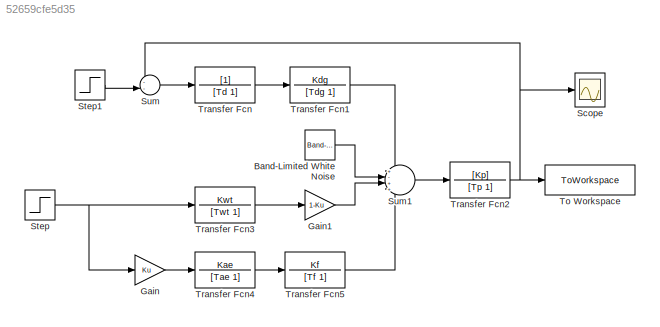
MODEL slx_52659cfe5d35
KIND model
CONFIG AbsTol = auto
CONFIG EnableMultiTasking = off
CONFIG FixedStep = timestep
CONFIG MaxStep = auto
CONFIG MinStep = auto
CONFIG RelTol = 1e-3
CONFIG SampleTimeConstraint = Unconstrained
CONFIG SolverName = FixedStepAuto
CONFIG StartTime = 0.0
CONFIG StopTime = t_max
BLOCK [Reference] Band-Limited White Noise  REF=simulink/Sources/Band-Limited
White Noise
  SourceBlock = simulink/Sources/Band-Limited\nWhite Noise
  SourceType = Band-Limited White Noise.
BLOCK [Gain] Gain
  Gain = Ku
BLOCK [Gain] Gain1
  Gain = 1-Ku
BLOCK [Scope] Scope
  Floating = off
  NumInputPorts = 1
  ScopeSpecificationString = Simulink.scopes.TimeScopeBlockCfg('CurrentConfiguration', extmgr.ConfigurationSet(extmgr.Configuration('Core','General UI',true),extmgr.Configuration('Core','Source UI',true),extmgr.Configuration('Sources','WiredSimulink',true),extmgr.Configuration('Visuals','Time Domain',true,'SerializedDisplays',{struct('MinYLimReal','-196.26873','MaxYLimReal','185.74871','YLabelReal','','MinYLimMag',' 0.00000',...<+1403ch>
BLOCK [Step] Step
  SampleTime = 0
  Time = step_v
BLOCK [Step] Step1
  SampleTime = 0
BLOCK [Sum] Sum
  Inputs = --|
BLOCK [Sum] Sum1
  Inputs = +-++
BLOCK [ToWorkspace] To Workspace
  FixptAsFi = on
  MaxDataPoints = inf
  SampleTime = -1
  VariableName = out
BLOCK [TransferFcn] Transfer Fcn
  Denominator = [Td 1]
BLOCK [TransferFcn] Transfer Fcn1
  Denominator = [Tdg 1]
  Numerator = Kdg
BLOCK [TransferFcn] Transfer Fcn2
  Denominator = [Tp 1]
  Numerator = [Kp]
BLOCK [TransferFcn] Transfer Fcn3
  Denominator = [Twt 1]
  Numerator = Kwt
BLOCK [TransferFcn] Transfer Fcn4
  Denominator = [Tae 1]
  Numerator = Kae
BLOCK [TransferFcn] Transfer Fcn5
  Denominator = [Tf 1]
  Numerator = Kf
LINE Band-Limited White Noise:1 -> Sum1:2
LINE Gain1:1 -> Sum1:3
LINE Gain:1 -> Transfer Fcn4:1
LINE Step1:1 -> Sum:2
NET Step:1 -> Gain:1, Transfer Fcn3:1
LINE Sum1:1 -> Transfer Fcn2:1
LINE Sum:1 -> Transfer Fcn:1
LINE Transfer Fcn1:1 -> Sum1:1
NET Transfer Fcn2:1 -> Scope:1, Sum:1, To Workspace:1
LINE Transfer Fcn3:1 -> Gain1:1
LINE Transfer Fcn4:1 -> Transfer Fcn5:1
LINE Transfer Fcn5:1 -> Sum1:4
LINE Transfer Fcn:1 -> Transfer Fcn1:1
note: NET lines group one-source signal fan-out (src -> all destinations, sorted); 1:1 wires keep LINE
